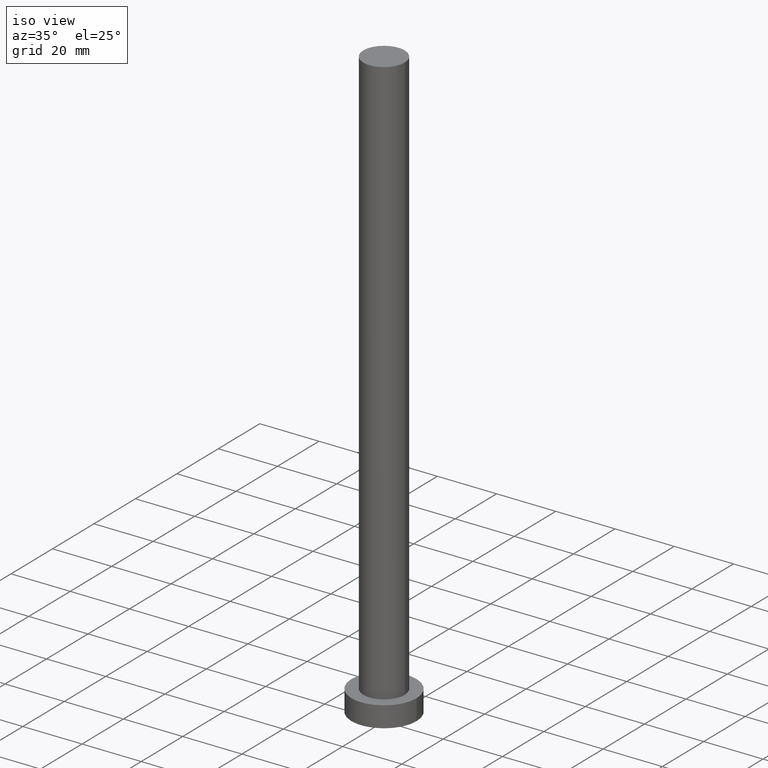
[diagram: clean part render]
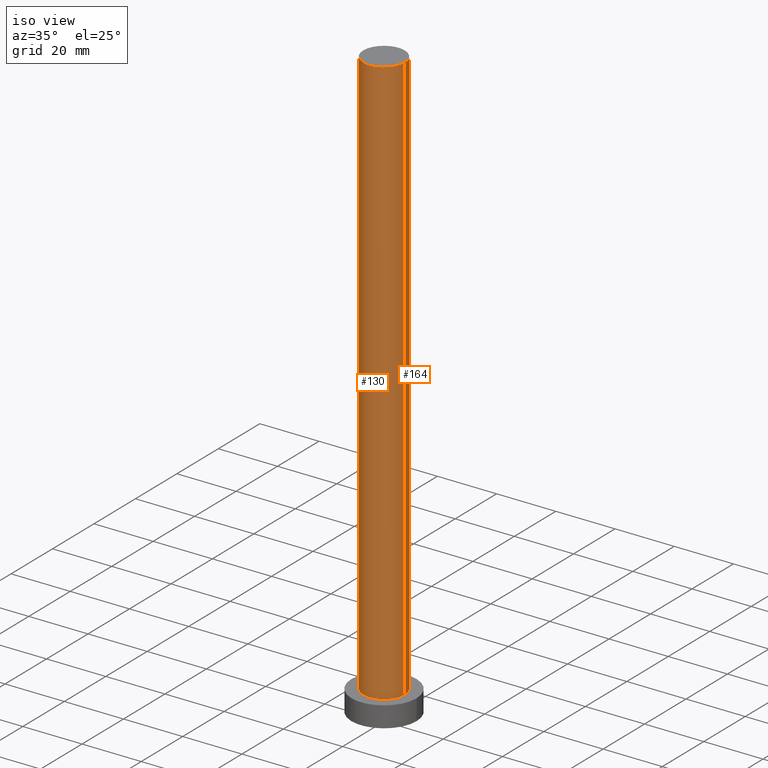
[diagram: same view with one multi-face feature highlighted, each face labeled with its STEP entity id]
A machine part, iso view. The highlighted faces form ONE feature: a constant-radius fillet chain: 2 tangent blend faces with common blend radius 7 mm. The faces share edges in the B-rep.
Their STEP definitions:
[1] entity #130 (Cylinder):
#2 = VERTEX_POINT ( 'NONE', #188 ) ;
#15 = VECTOR ( 'NONE', #215, 1000.000000000000000 ) ;
#23 = CARTESIAN_POINT ( 'NONE',  ( 7.000000000000000888, 8.572527594031474176E-16, 7.000000000000000000 ) ) ;
#30 = LINE ( 'NONE', #52, #15 ) ;
#40 = VERTEX_POINT ( 'NONE', #23 ) ;
#42 = ORIENTED_EDGE ( 'NONE', *, *, #127, .T. ) ;
#51 = LINE ( 'NONE', #194, #178 ) ;
#52 = CARTESIAN_POINT ( 'NONE',  ( 7.000000000000000888, 8.572527594031474176E-16, 200.0000000000000000 ) ) ;
#80 = CIRCLE ( 'NONE', #95, 7.000000000000000888 ) ;
#83 = CIRCLE ( 'NONE', #169, 7.000000000000000888 ) ;
#88 = VERTEX_POINT ( 'NONE', #106 ) ;
#92 = DIRECTION ( 'NONE',  ( -0.000000000000000000, -0.000000000000000000, -1.000000000000000000 ) ) ;
#95 = AXIS2_PLACEMENT_3D ( 'NONE', #168, #131, #129 ) ;
#97 = CYLINDRICAL_SURFACE ( 'NONE', #163, 7.000000000000000888 ) ;
#103 = VERTEX_POINT ( 'NONE', #190 ) ;
#106 = CARTESIAN_POINT ( 'NONE',  ( -7.000000000000000888, 0.000000000000000000, 7.000000000000000000 ) ) ;
#120 = EDGE_CURVE ( 'NONE', #103, #2, #83, .T. ) ;
#123 = ORIENTED_EDGE ( 'NONE', *, *, #245, .T. ) ;
#127 = EDGE_CURVE ( 'NONE', #103, #88, #51, .T. ) ;
#128 = DIRECTION ( 'NONE',  ( -1.000000000000000000, 0.000000000000000000, 0.000000000000000000 ) ) ;
#129 = DIRECTION ( 'NONE',  ( 1.000000000000000000, 0.000000000000000000, 0.000000000000000000 ) ) ;
#130 = ADVANCED_FACE ( 'NONE', ( #227 ), #97, .T. ) ;
#131 = DIRECTION ( 'NONE',  ( 0.000000000000000000, 0.000000000000000000, 1.000000000000000000 ) ) ;
#134 = EDGE_CURVE ( 'NONE', #2, #40, #30, .T. ) ;
#140 = ORIENTED_EDGE ( 'NONE', *, *, #134, .F. ) ;
#149 = DIRECTION ( 'NONE',  ( 1.000000000000000000, 0.000000000000000000, 0.000000000000000000 ) ) ;
#163 = AXIS2_PLACEMENT_3D ( 'NONE', #175, #247, #128 ) ;
#167 = CARTESIAN_POINT ( 'NONE',  ( 0.000000000000000000, 0.000000000000000000, 200.0000000000000000 ) ) ;
#168 = CARTESIAN_POINT ( 'NONE',  ( 0.000000000000000000, 0.000000000000000000, 7.000000000000000000 ) ) ;
#169 = AXIS2_PLACEMENT_3D ( 'NONE', #167, #213, #149 ) ;
#175 = CARTESIAN_POINT ( 'NONE',  ( 0.000000000000000000, 0.000000000000000000, 200.0000000000000000 ) ) ;
#178 = VECTOR ( 'NONE', #92, 1000.000000000000000 ) ;
#188 = CARTESIAN_POINT ( 'NONE',  ( 7.000000000000000888, 8.572527594031474176E-16, 200.0000000000000000 ) ) ;
#190 = CARTESIAN_POINT ( 'NONE',  ( -7.000000000000000888, 0.000000000000000000, 200.0000000000000000 ) ) ;
#194 = CARTESIAN_POINT ( 'NONE',  ( -7.000000000000000888, 0.000000000000000000, 200.0000000000000000 ) ) ;
#209 = EDGE_LOOP ( 'NONE', ( #140, #222, #42, #123 ) ) ;
#213 = DIRECTION ( 'NONE',  ( 0.000000000000000000, 0.000000000000000000, 1.000000000000000000 ) ) ;
#215 = DIRECTION ( 'NONE',  ( -0.000000000000000000, -0.000000000000000000, -1.000000000000000000 ) ) ;
#222 = ORIENTED_EDGE ( 'NONE', *, *, #120, .F. ) ;
#227 = FACE_OUTER_BOUND ( 'NONE', #209, .T. ) ;
#245 = EDGE_CURVE ( 'NONE', #88, #40, #80, .T. ) ;
#247 = DIRECTION ( 'NONE',  ( -0.000000000000000000, -0.000000000000000000, -1.000000000000000000 ) ) ;
[2] entity #164 (Cylinder):
#2 = VERTEX_POINT ( 'NONE', #188 ) ;
#10 = AXIS2_PLACEMENT_3D ( 'NONE', #180, #41, #122 ) ;
#15 = VECTOR ( 'NONE', #215, 1000.000000000000000 ) ;
#21 = AXIS2_PLACEMENT_3D ( 'NONE', #211, #225, #223 ) ;
#23 = CARTESIAN_POINT ( 'NONE',  ( 7.000000000000000888, 8.572527594031474176E-16, 7.000000000000000000 ) ) ;
#30 = LINE ( 'NONE', #52, #15 ) ;
#34 = DIRECTION ( 'NONE',  ( 1.000000000000000000, 0.000000000000000000, 0.000000000000000000 ) ) ;
#40 = VERTEX_POINT ( 'NONE', #23 ) ;
#41 = DIRECTION ( 'NONE',  ( -0.000000000000000000, -0.000000000000000000, -1.000000000000000000 ) ) ;
#51 = LINE ( 'NONE', #194, #178 ) ;
#52 = CARTESIAN_POINT ( 'NONE',  ( 7.000000000000000888, 8.572527594031474176E-16, 200.0000000000000000 ) ) ;
#61 = FACE_OUTER_BOUND ( 'NONE', #199, .T. ) ;
#65 = ORIENTED_EDGE ( 'NONE', *, *, #81, .T. ) ;
#81 = EDGE_CURVE ( 'NONE', #40, #88, #158, .T. ) ;
#88 = VERTEX_POINT ( 'NONE', #106 ) ;
#92 = DIRECTION ( 'NONE',  ( -0.000000000000000000, -0.000000000000000000, -1.000000000000000000 ) ) ;
#100 = ORIENTED_EDGE ( 'NONE', *, *, #134, .T. ) ;
#103 = VERTEX_POINT ( 'NONE', #190 ) ;
#106 = CARTESIAN_POINT ( 'NONE',  ( -7.000000000000000888, 0.000000000000000000, 7.000000000000000000 ) ) ;
#115 = CIRCLE ( 'NONE', #251, 7.000000000000000888 ) ;
#122 = DIRECTION ( 'NONE',  ( -1.000000000000000000, 0.000000000000000000, 0.000000000000000000 ) ) ;
#127 = EDGE_CURVE ( 'NONE', #103, #88, #51, .T. ) ;
#134 = EDGE_CURVE ( 'NONE', #2, #40, #30, .T. ) ;
#137 = CYLINDRICAL_SURFACE ( 'NONE', #10, 7.000000000000000888 ) ;
#153 = CARTESIAN_POINT ( 'NONE',  ( 0.000000000000000000, 0.000000000000000000, 200.0000000000000000 ) ) ;
#158 = CIRCLE ( 'NONE', #21, 7.000000000000000888 ) ;
#164 = ADVANCED_FACE ( 'NONE', ( #61 ), #137, .T. ) ;
#178 = VECTOR ( 'NONE', #92, 1000.000000000000000 ) ;
#180 = CARTESIAN_POINT ( 'NONE',  ( 0.000000000000000000, 0.000000000000000000, 200.0000000000000000 ) ) ;
#182 = ORIENTED_EDGE ( 'NONE', *, *, #229, .F. ) ;
#188 = CARTESIAN_POINT ( 'NONE',  ( 7.000000000000000888, 8.572527594031474176E-16, 200.0000000000000000 ) ) ;
#190 = CARTESIAN_POINT ( 'NONE',  ( -7.000000000000000888, 0.000000000000000000, 200.0000000000000000 ) ) ;
#194 = CARTESIAN_POINT ( 'NONE',  ( -7.000000000000000888, 0.000000000000000000, 200.0000000000000000 ) ) ;
#199 = EDGE_LOOP ( 'NONE', ( #182, #100, #65, #220 ) ) ;
#211 = CARTESIAN_POINT ( 'NONE',  ( 0.000000000000000000, 0.000000000000000000, 7.000000000000000000 ) ) ;
#215 = DIRECTION ( 'NONE',  ( -0.000000000000000000, -0.000000000000000000, -1.000000000000000000 ) ) ;
#220 = ORIENTED_EDGE ( 'NONE', *, *, #127, .F. ) ;
#223 = DIRECTION ( 'NONE',  ( 1.000000000000000000, 0.000000000000000000, 0.000000000000000000 ) ) ;
#225 = DIRECTION ( 'NONE',  ( 0.000000000000000000, 0.000000000000000000, 1.000000000000000000 ) ) ;
#229 = EDGE_CURVE ( 'NONE', #2, #103, #115, .T. ) ;
#248 = DIRECTION ( 'NONE',  ( 0.000000000000000000, 0.000000000000000000, 1.000000000000000000 ) ) ;
#251 = AXIS2_PLACEMENT_3D ( 'NONE', #153, #248, #34 ) ;